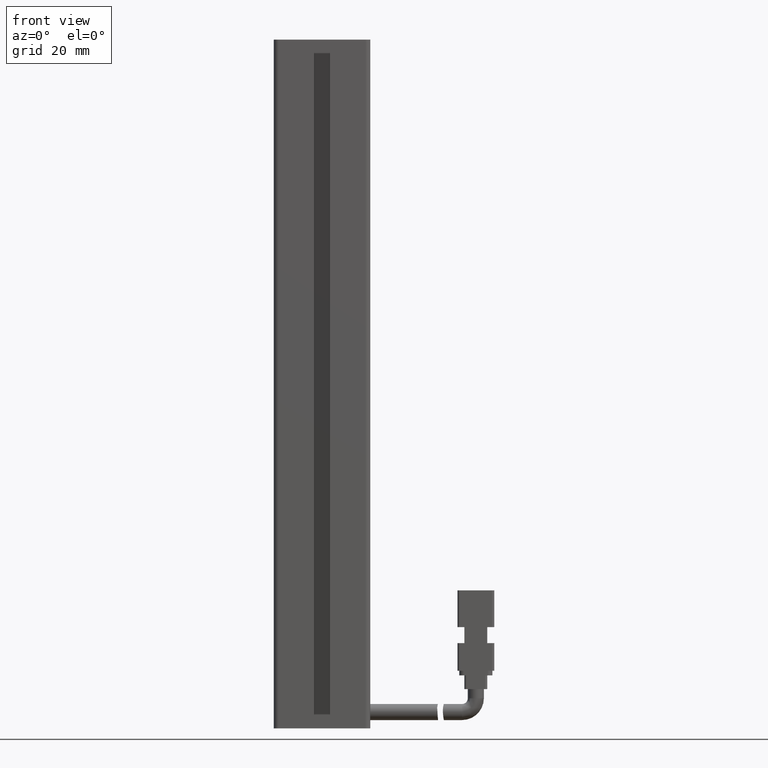
[diagram: clean part render]
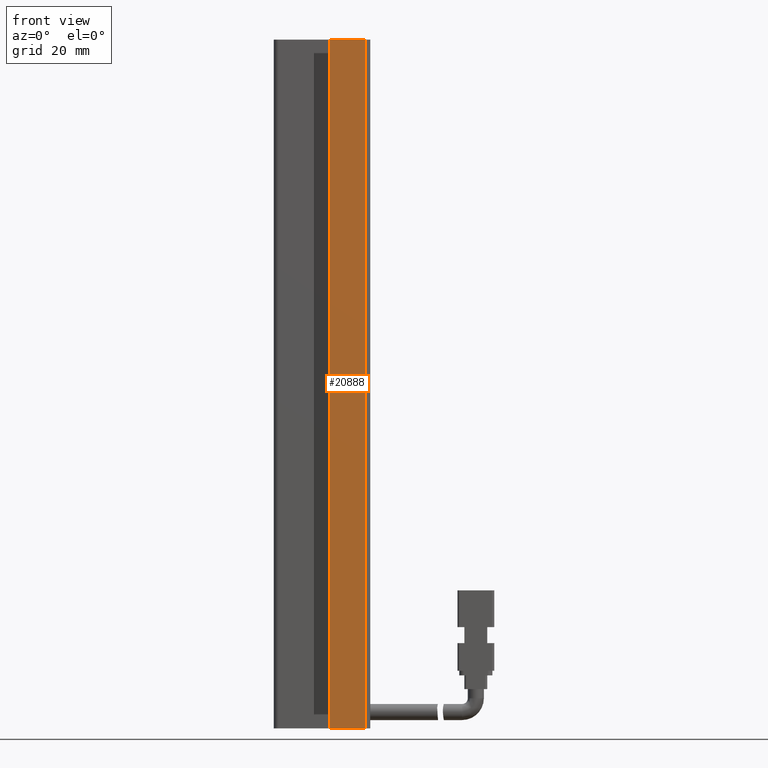
[diagram: same view with one face highlighted and labeled with its STEP entity id]
A machine part, front view. The second image highlights one B-rep face of the part: STEP entity #20888.
In plain terms, the highlighted planar face has unit normal (0, 1, 0).
Its self-contained STEP definition (entity closure, byte-faithful):
#1986 = VERTEX_POINT ( 'NONE', #11560 ) ;
#2603 = VECTOR ( 'NONE', #16889, 1000.000000000000000 ) ;
#3345 = ORIENTED_EDGE ( 'NONE', *, *, #29324, .T. ) ;
#4069 = VECTOR ( 'NONE', #8719, 1000.000000000000000 ) ;
#5142 = AXIS2_PLACEMENT_3D ( 'NONE', #16905, #28138, #27711 ) ;
#5772 = VECTOR ( 'NONE', #20672, 1000.000000000000000 ) ;
#8523 = ORIENTED_EDGE ( 'NONE', *, *, #41112, .F. ) ;
#8719 = DIRECTION ( 'NONE',  ( -0.0000000000000000000, 0.0000000000000000000, -1.000000000000000000 ) ) ;
#9487 = VERTEX_POINT ( 'NONE', #32440 ) ;
#10362 = LINE ( 'NONE', #34223, #5772 ) ;
#10661 = LINE ( 'NONE', #34757, #4069 ) ;
#10702 = ORIENTED_EDGE ( 'NONE', *, *, #37900, .F. ) ;
#10822 = CARTESIAN_POINT ( 'NONE',  ( 42.67537974683542500, 10.99073232304837000, -190.0000000000000000 ) ) ;
#11560 = CARTESIAN_POINT ( 'NONE',  ( 50.42537974683541800, 10.99073232304837000, -190.0000000000000000 ) ) ;
#13467 = CARTESIAN_POINT ( 'NONE',  ( 42.67537974683542500, 10.99073232304837000, -40.00000000000000700 ) ) ;
#15547 = VERTEX_POINT ( 'NONE', #10822 ) ;
#16889 = DIRECTION ( 'NONE',  ( 0.0000000000000000000, -0.0000000000000000000, 1.000000000000000000 ) ) ;
#16905 = CARTESIAN_POINT ( 'NONE',  ( 40.92537974683542500, 10.99073232304837000, -40.00000000000000700 ) ) ;
#20088 = VERTEX_POINT ( 'NONE', #39495 ) ;
#20672 = DIRECTION ( 'NONE',  ( 1.000000000000000000, 0.0000000000000000000, 0.0000000000000000000 ) ) ;
#20888 = ADVANCED_FACE ( 'NONE', ( #40255 ), #26586, .F. ) ;
#24756 = ORIENTED_EDGE ( 'NONE', *, *, #30592, .F. ) ;
#26010 = DIRECTION ( 'NONE',  ( 1.000000000000000000, 0.0000000000000000000, 0.0000000000000000000 ) ) ;
#26586 = PLANE ( 'NONE',  #5142 ) ;
#27711 = DIRECTION ( 'NONE',  ( 0.0000000000000000000, -0.0000000000000000000, 1.000000000000000000 ) ) ;
#28138 = DIRECTION ( 'NONE',  ( 0.0000000000000000000, 1.000000000000000000, 0.0000000000000000000 ) ) ;
#28605 = VECTOR ( 'NONE', #26010, 1000.000000000000000 ) ;
#29324 = EDGE_CURVE ( 'NONE', #15547, #1986, #10362, .T. ) ;
#30592 = EDGE_CURVE ( 'NONE', #20088, #1986, #10661, .T. ) ;
#32440 = CARTESIAN_POINT ( 'NONE',  ( 42.67537974683542500, 10.99073232304837000, -40.00000000000000700 ) ) ;
#33185 = EDGE_LOOP ( 'NONE', ( #24756, #10702, #8523, #3345 ) ) ;
#34223 = CARTESIAN_POINT ( 'NONE',  ( 40.92537974683542500, 10.99073232304837000, -190.0000000000000000 ) ) ;
#34757 = CARTESIAN_POINT ( 'NONE',  ( 50.42537974683541800, 10.99073232304837000, -40.00000000000000700 ) ) ;
#36857 = LINE ( 'NONE', #38445, #28605 ) ;
#37900 = EDGE_CURVE ( 'NONE', #9487, #20088, #36857, .T. ) ;
#38445 = CARTESIAN_POINT ( 'NONE',  ( 40.92537974683542500, 10.99073232304837000, -40.00000000000000700 ) ) ;
#39495 = CARTESIAN_POINT ( 'NONE',  ( 50.42537974683541800, 10.99073232304837000, -40.00000000000000700 ) ) ;
#40255 = FACE_OUTER_BOUND ( 'NONE', #33185, .T. ) ;
#40779 = LINE ( 'NONE', #13467, #2603 ) ;
#41112 = EDGE_CURVE ( 'NONE', #15547, #9487, #40779, .T. ) ;